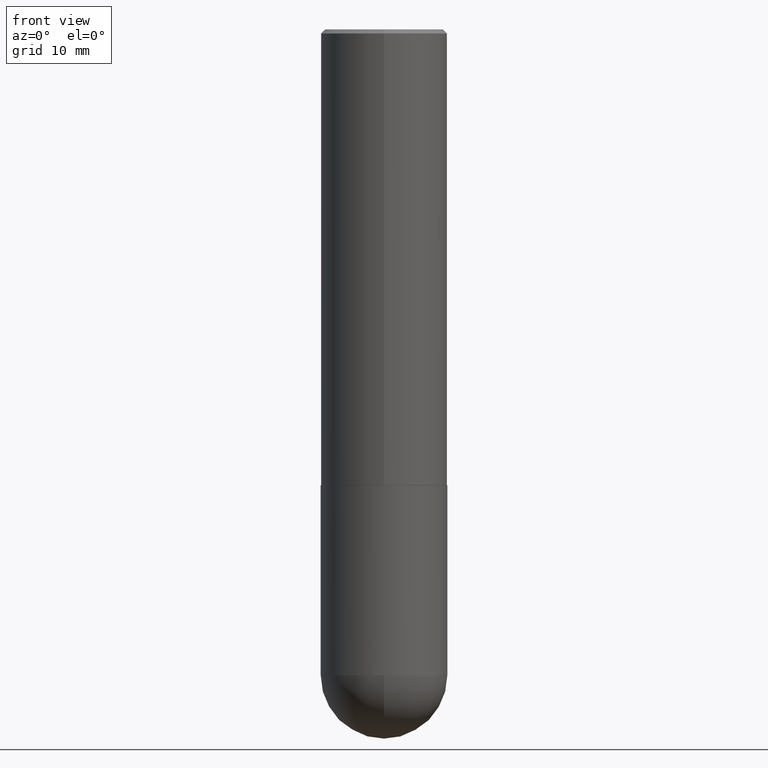
[diagram: clean part render]
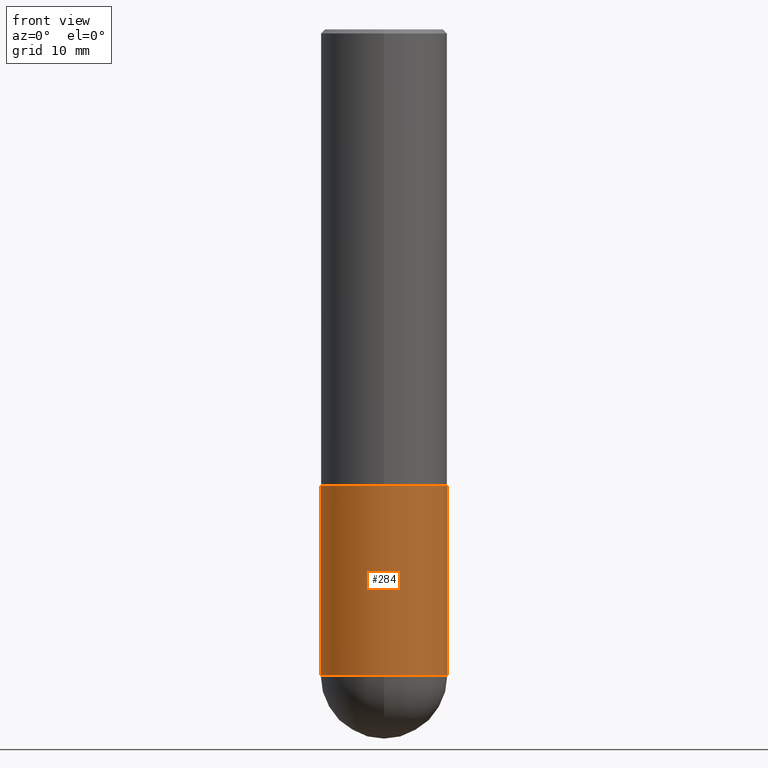
[diagram: same view with one face highlighted and labeled with its STEP entity id]
A machine part, front view. The second image highlights one B-rep face of the part: STEP entity #284.
In plain terms, the highlighted cylindrical surface (partial cylindrical patch) has radius 7.9375 mm, axis along (-0, 0, 1).
Its self-contained STEP definition (entity closure, byte-faithful):
#10 = AXIS2_PLACEMENT_3D ( 'NONE', #155, #35, #314 ) ;
#32 = DIRECTION ( 'NONE',  ( -2.445468806185136877E-29, 3.491481338843145188E-15, 1.000000000000000000 ) ) ;
#33 = AXIS2_PLACEMENT_3D ( 'NONE', #227, #298, #305 ) ;
#35 = DIRECTION ( 'NONE',  ( -2.445468806185136597E-29, 3.491481338843145583E-15, 1.000000000000000000 ) ) ;
#37 = ORIENTED_EDGE ( 'NONE', *, *, #237, .T. ) ;
#51 = CARTESIAN_POINT ( 'NONE',  ( 5.502304813916556222E-29, -7.855833012397076871E-15, -2.249999999999999556 ) ) ;
#52 = EDGE_CURVE ( 'NONE', #197, #406, #198, .T. ) ;
#53 = AXIS2_PLACEMENT_3D ( 'NONE', #51, #121, #156 ) ;
#61 = LINE ( 'NONE', #131, #70 ) ;
#70 = VECTOR ( 'NONE', #32, 39.37007874015748143 ) ;
#107 = CARTESIAN_POINT ( 'NONE',  ( -0.3125000000000000000, -7.272018840729490833E-15, -3.187500000000000000 ) ) ;
#115 = DIRECTION ( 'NONE',  ( -2.445468806185136877E-29, 3.491481338843145188E-15, 1.000000000000000000 ) ) ;
#121 = DIRECTION ( 'NONE',  ( -2.445468806185136597E-29, 3.491481338843145583E-15, 1.000000000000000000 ) ) ;
#122 = CARTESIAN_POINT ( 'NONE',  ( 0.3125000000000000000, -1.167464072675676384E-14, -3.187500000000000000 ) ) ;
#131 = CARTESIAN_POINT ( 'NONE',  ( -0.3125000000000000000, 2.220446049250313081E-15, -1.537167215704658232E-29 ) ) ;
#148 = CARTESIAN_POINT ( 'NONE',  ( 0.000000000000000000, 0.000000000000000000, 0.000000000000000000 ) ) ;
#155 = CARTESIAN_POINT ( 'NONE',  ( 7.794931819715121781E-29, -1.112909676756252622E-14, -3.187500000000000000 ) ) ;
#156 = DIRECTION ( 'NONE',  ( 1.000000000000000000, -6.982962677686269077E-15, 0.000000000000000000 ) ) ;
#157 = CARTESIAN_POINT ( 'NONE',  ( 0.3125000000000000000, -1.003800884917403522E-14, -2.249999999999999556 ) ) ;
#180 = CIRCLE ( 'NONE', #10, 0.3125000000000000000 ) ;
#197 = VERTEX_POINT ( 'NONE', #257 ) ;
#198 = CIRCLE ( 'NONE', #53, 0.3125000000000000000 ) ;
#204 = EDGE_CURVE ( 'NONE', #362, #250, #308, .T. ) ;
#211 = LINE ( 'NONE', #328, #263 ) ;
#217 = CYLINDRICAL_SURFACE ( 'NONE', #254, 0.3125000000000000000 ) ;
#227 = CARTESIAN_POINT ( 'NONE',  ( 7.794931819715121781E-29, -1.112909676756252622E-14, -3.187500000000000000 ) ) ;
#237 = EDGE_CURVE ( 'NONE', #250, #406, #211, .T. ) ;
#250 = VERTEX_POINT ( 'NONE', #122 ) ;
#254 = AXIS2_PLACEMENT_3D ( 'NONE', #148, #343, #346 ) ;
#257 = CARTESIAN_POINT ( 'NONE',  ( -0.3125000000000000000, -7.272018840729487678E-15, -2.249999999999999556 ) ) ;
#263 = VECTOR ( 'NONE', #115, 39.37007874015748143 ) ;
#274 = CARTESIAN_POINT ( 'NONE',  ( -2.220446049250237350E-15, -0.3125000000000114908, -3.187499999999998668 ) ) ;
#284 = ADVANCED_FACE ( 'NONE', ( #409 ), #217, .T. ) ;
#298 = DIRECTION ( 'NONE',  ( -2.445468806185136597E-29, 3.491481338843145583E-15, 1.000000000000000000 ) ) ;
#299 = ORIENTED_EDGE ( 'NONE', *, *, #405, .F. ) ;
#305 = DIRECTION ( 'NONE',  ( 1.000000000000000000, -6.982962677686269077E-15, 0.000000000000000000 ) ) ;
#308 = CIRCLE ( 'NONE', #33, 0.3125000000000000000 ) ;
#314 = DIRECTION ( 'NONE',  ( 1.000000000000000000, -6.982962677686269077E-15, 0.000000000000000000 ) ) ;
#319 = VERTEX_POINT ( 'NONE', #107 ) ;
#328 = CARTESIAN_POINT ( 'NONE',  ( 0.3125000000000000000, -2.182175836776958347E-15, 1.523805242436230075E-29 ) ) ;
#343 = DIRECTION ( 'NONE',  ( -2.445468806185136597E-29, 3.491481338843145583E-15, 1.000000000000000000 ) ) ;
#346 = DIRECTION ( 'NONE',  ( 1.000000000000000000, -6.982962677686266711E-15, 4.876176775795936353E-29 ) ) ;
#357 = ORIENTED_EDGE ( 'NONE', *, *, #52, .F. ) ;
#362 = VERTEX_POINT ( 'NONE', #274 ) ;
#363 = EDGE_CURVE ( 'NONE', #319, #362, #180, .T. ) ;
#366 = EDGE_LOOP ( 'NONE', ( #299, #395, #403, #37, #357 ) ) ;
#395 = ORIENTED_EDGE ( 'NONE', *, *, #363, .T. ) ;
#403 = ORIENTED_EDGE ( 'NONE', *, *, #204, .T. ) ;
#405 = EDGE_CURVE ( 'NONE', #319, #197, #61, .T. ) ;
#406 = VERTEX_POINT ( 'NONE', #157 ) ;
#409 = FACE_OUTER_BOUND ( 'NONE', #366, .T. ) ;